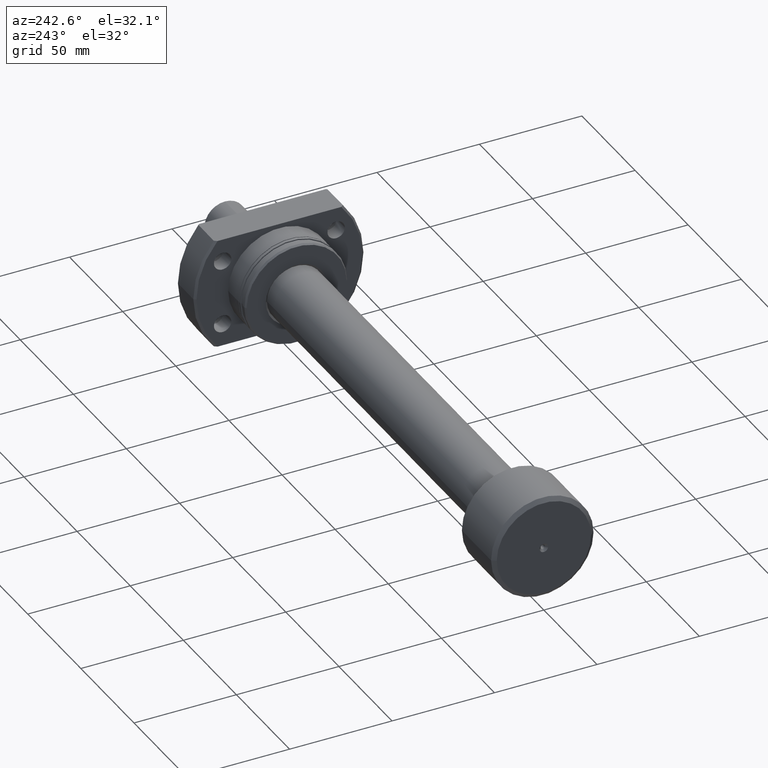
[diagram: clean part render]
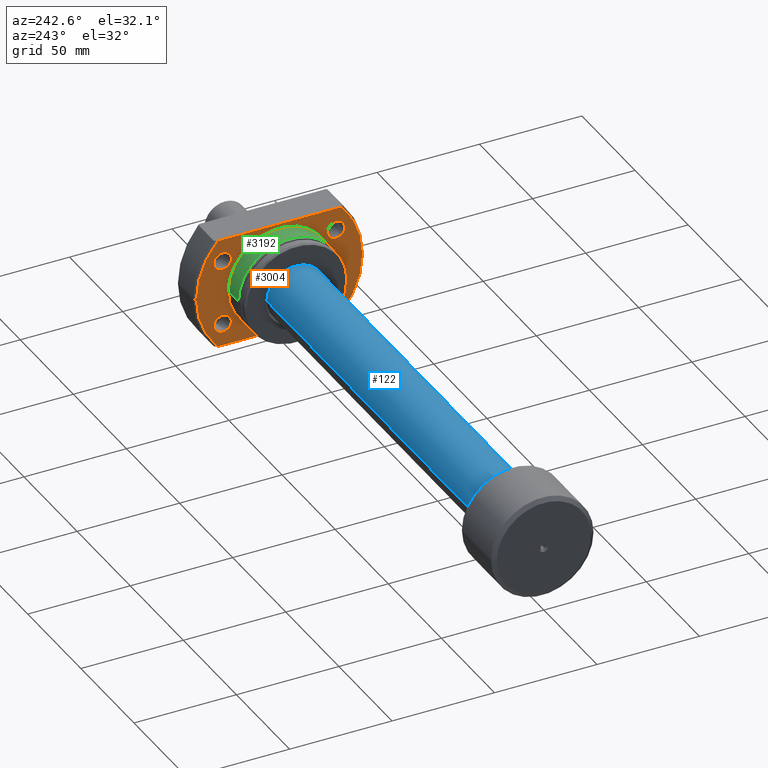
[diagram: same view with three faces highlighted in distinct colors, each labeled with its STEP entity id]
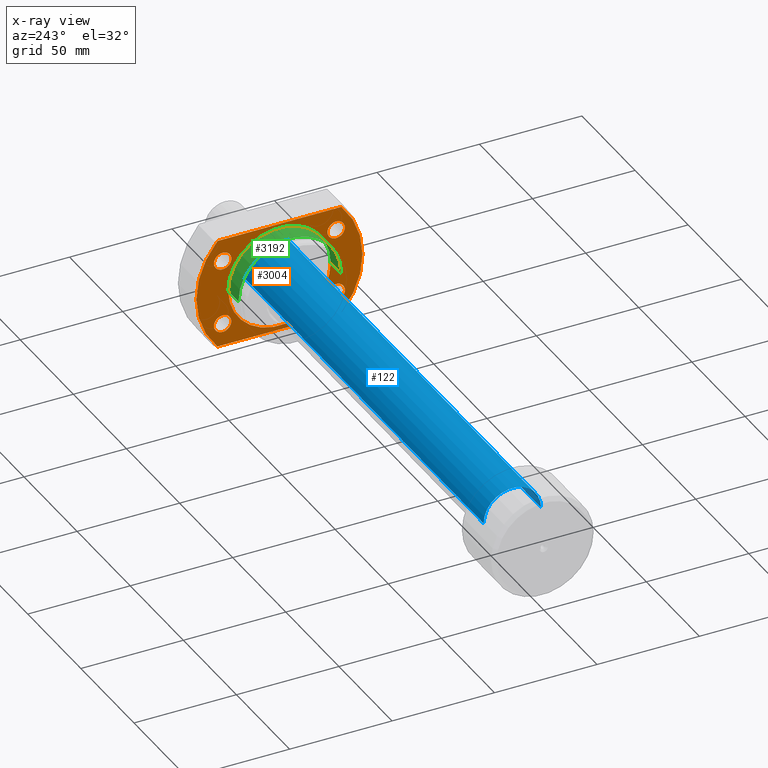
[diagram: x-ray of the same camera — body ghosted, the three highlighted faces saturated]
A machine part, auxiliary view with three faces highlighted in distinct colors.
The next image is the same camera in x-ray (body ghosted, the three faces saturated) — at least one of them is partly hidden behind the body in this view.
Their STEP definitions:

[orange] entity #3004 — the highlighted planar face has unit normal (1, 0, 0).
#34 = CARTESIAN_POINT ( 'NONE',  ( 16.19999999999999929, -24.99999999999999645, 3.061616997868382648E-15 ) ) ;
#35 = CIRCLE ( 'NONE', #3076, 4.250000000000000000 ) ;
#46 = DIRECTION ( 'NONE',  ( 0.000000000000000000, 1.000000000000000000, 0.000000000000000000 ) ) ;
#60 = ORIENTED_EDGE ( 'NONE', *, *, #412, .T. ) ;
#66 = DIRECTION ( 'NONE',  ( 1.000000000000000000, 2.928503215352364811E-17, -0.000000000000000000 ) ) ;
#72 = DIRECTION ( 'NONE',  ( 1.000000000000000000, 2.928503215352364811E-17, -0.000000000000000000 ) ) ;
#75 = LINE ( 'NONE', #2364, #2432 ) ;
#129 = ORIENTED_EDGE ( 'NONE', *, *, #2680, .T. ) ;
#132 = DIRECTION ( 'NONE',  ( 0.000000000000000000, 1.000000000000000000, 0.000000000000000000 ) ) ;
#157 = FACE_BOUND ( 'NONE', #3655, .T. ) ;
#182 = CARTESIAN_POINT ( 'NONE',  ( 16.20000000000000639, -30.18691769624705046, -27.00000000000001066 ) ) ;
#217 = DIRECTION ( 'NONE',  ( 0.000000000000000000, 1.000000000000000000, 0.000000000000000000 ) ) ;
#264 = LINE ( 'NONE', #3129, #3563 ) ;
#328 = AXIS2_PLACEMENT_3D ( 'NONE', #604, #2351, #2621 ) ;
#339 = EDGE_CURVE ( 'NONE', #1833, #640, #1503, .T. ) ;
#344 = ORIENTED_EDGE ( 'NONE', *, *, #2411, .T. ) ;
#363 = ORIENTED_EDGE ( 'NONE', *, *, #1037, .F. ) ;
#377 = DIRECTION ( 'NONE',  ( 0.000000000000000000, 1.000000000000000000, 0.000000000000000000 ) ) ;
#387 = VERTEX_POINT ( 'NONE', #3059 ) ;
#412 = EDGE_CURVE ( 'NONE', #543, #655, #3101, .T. ) ;
#436 = EDGE_CURVE ( 'NONE', #2628, #496, #898, .T. ) ;
#439 = CARTESIAN_POINT ( 'NONE',  ( 16.19999999999999929, 31.94999999999953388, 16.00000000000000000 ) ) ;
#460 = AXIS2_PLACEMENT_3D ( 'NONE', #1051, #2727, #132 ) ;
#496 = VERTEX_POINT ( 'NONE', #1113 ) ;
#543 = VERTEX_POINT ( 'NONE', #34 ) ;
#601 = AXIS2_PLACEMENT_3D ( 'NONE', #2187, #3032, #3623 ) ;
#604 = CARTESIAN_POINT ( 'NONE',  ( 16.19999999999999929, 4.744175208870830402E-16, 0.000000000000000000 ) ) ;
#640 = VERTEX_POINT ( 'NONE', #3458 ) ;
#655 = VERTEX_POINT ( 'NONE', #1088 ) ;
#666 = DIRECTION ( 'NONE',  ( 1.000000000000000000, 2.928503215352364811E-17, -0.000000000000000000 ) ) ;
#700 = FACE_BOUND ( 'NONE', #2280, .T. ) ;
#796 = EDGE_CURVE ( 'NONE', #1833, #2094, #75, .T. ) ;
#898 = CIRCLE ( 'NONE', #601, 4.250000000000000000 ) ;
#908 = DIRECTION ( 'NONE',  ( 1.000000000000000000, 2.928503215352364811E-17, -0.000000000000000000 ) ) ;
#922 = DIRECTION ( 'NONE',  ( 1.000000000000000000, 2.928503215352364811E-17, -0.000000000000000000 ) ) ;
#926 = VERTEX_POINT ( 'NONE', #1337 ) ;
#929 = DIRECTION ( 'NONE',  ( 2.928503215352364811E-17, -1.000000000000000000, 0.000000000000000000 ) ) ;
#966 = DIRECTION ( 'NONE',  ( 0.000000000000000000, 1.000000000000000000, 0.000000000000000000 ) ) ;
#975 = CARTESIAN_POINT ( 'NONE',  ( 16.19999999999999929, 31.94999999999953388, -16.00000000000000000 ) ) ;
#1022 = ORIENTED_EDGE ( 'NONE', *, *, #2782, .T. ) ;
#1037 = EDGE_CURVE ( 'NONE', #1424, #2991, #264, .T. ) ;
#1051 = CARTESIAN_POINT ( 'NONE',  ( 16.19999999999999929, 27.69999999999953388, -16.00000000000000000 ) ) ;
#1063 = DIRECTION ( 'NONE',  ( 0.000000000000000000, 1.000000000000000000, 0.000000000000000000 ) ) ;
#1082 = ORIENTED_EDGE ( 'NONE', *, *, #3125, .F. ) ;
#1088 = CARTESIAN_POINT ( 'NONE',  ( 16.19999999999999929, 24.99999999999999645, 0.000000000000000000 ) ) ;
#1108 = DIRECTION ( 'NONE',  ( 1.000000000000000000, 2.928503215352364811E-17, -0.000000000000000000 ) ) ;
#1113 = CARTESIAN_POINT ( 'NONE',  ( 16.19999999999999929, 23.44999999999953388, 16.00000000000000000 ) ) ;
#1144 = DIRECTION ( 'NONE',  ( 2.928503215352364811E-17, -1.000000000000000000, 0.000000000000000000 ) ) ;
#1155 = EDGE_LOOP ( 'NONE', ( #1022, #60 ) ) ;
#1166 = DIRECTION ( 'NONE',  ( 0.000000000000000000, 1.000000000000000000, 0.000000000000000000 ) ) ;
#1283 = EDGE_CURVE ( 'NONE', #496, #2628, #2902, .T. ) ;
#1294 = AXIS2_PLACEMENT_3D ( 'NONE', #3531, #908, #966 ) ;
#1337 = CARTESIAN_POINT ( 'NONE',  ( 16.19999999999999929, -23.45000000000046469, 16.00000000000000000 ) ) ;
#1354 = AXIS2_PLACEMENT_3D ( 'NONE', #3472, #72, #2360 ) ;
#1379 = EDGE_LOOP ( 'NONE', ( #3067, #2840 ) ) ;
#1390 = ORIENTED_EDGE ( 'NONE', *, *, #3345, .F. ) ;
#1406 = AXIS2_PLACEMENT_3D ( 'NONE', #1561, #2718, #2091 ) ;
#1407 = CIRCLE ( 'NONE', #460, 4.250000000000000000 ) ;
#1424 = VERTEX_POINT ( 'NONE', #1627 ) ;
#1479 = DIRECTION ( 'NONE',  ( 0.000000000000000000, 1.000000000000000000, 0.000000000000000000 ) ) ;
#1489 = VERTEX_POINT ( 'NONE', #2352 ) ;
#1503 = CIRCLE ( 'NONE', #3592, 40.49999999999992184 ) ;
#1504 = DIRECTION ( 'NONE',  ( 0.000000000000000000, 1.000000000000000000, 0.000000000000000000 ) ) ;
#1561 = CARTESIAN_POINT ( 'NONE',  ( 16.19999999999999929, -24.99999999999999645, 0.000000000000000000 ) ) ;
#1627 = CARTESIAN_POINT ( 'NONE',  ( 16.20000000000000284, 30.18691769624705046, 27.00000000000001066 ) ) ;
#1642 = CARTESIAN_POINT ( 'NONE',  ( 16.19999999999999929, -27.70000000000046469, 16.00000000000000000 ) ) ;
#1656 = VERTEX_POINT ( 'NONE', #975 ) ;
#1684 = ORIENTED_EDGE ( 'NONE', *, *, #796, .T. ) ;
#1744 = ORIENTED_EDGE ( 'NONE', *, *, #436, .T. ) ;
#1762 = CIRCLE ( 'NONE', #2661, 4.250000000000000000 ) ;
#1770 = AXIS2_PLACEMENT_3D ( 'NONE', #2928, #66, #46 ) ;
#1829 = CARTESIAN_POINT ( 'NONE',  ( 16.20000000000000639, -30.18691769624705046, 27.00000000000001066 ) ) ;
#1833 = VERTEX_POINT ( 'NONE', #3452 ) ;
#1848 = CARTESIAN_POINT ( 'NONE',  ( 16.20000000000000284, 4.744175208870831388E-16, 0.000000000000000000 ) ) ;
#1864 = PLANE ( 'NONE',  #1406 ) ;
#1867 = EDGE_LOOP ( 'NONE', ( #3171, #344 ) ) ;
#1911 = CARTESIAN_POINT ( 'NONE',  ( 16.19999999999999929, 4.744175208870830402E-16, 0.000000000000000000 ) ) ;
#1914 = CARTESIAN_POINT ( 'NONE',  ( 16.19999999999999929, 27.69999999999953388, -16.00000000000000000 ) ) ;
#1921 = FACE_BOUND ( 'NONE', #1867, .T. ) ;
#1928 = CIRCLE ( 'NONE', #328, 24.99999999999999645 ) ;
#1934 = AXIS2_PLACEMENT_3D ( 'NONE', #2027, #1108, #1166 ) ;
#1945 = EDGE_CURVE ( 'NONE', #2952, #1489, #2067, .T. ) ;
#1963 = EDGE_LOOP ( 'NONE', ( #363, #1390, #2002, #1684, #1082 ) ) ;
#2002 = ORIENTED_EDGE ( 'NONE', *, *, #339, .F. ) ;
#2003 = EDGE_CURVE ( 'NONE', #1656, #387, #1407, .T. ) ;
#2027 = CARTESIAN_POINT ( 'NONE',  ( 16.20000000000000284, 4.744175208870831388E-16, 0.000000000000000000 ) ) ;
#2039 = ORIENTED_EDGE ( 'NONE', *, *, #1283, .T. ) ;
#2057 = CARTESIAN_POINT ( 'NONE',  ( 16.19999999999999929, -27.70000000000046469, 16.00000000000000000 ) ) ;
#2067 = CIRCLE ( 'NONE', #3569, 4.250000000000000000 ) ;
#2091 = DIRECTION ( 'NONE',  ( -2.928503215352364811E-17, 1.000000000000000000, 0.000000000000000000 ) ) ;
#2094 = VERTEX_POINT ( 'NONE', #182 ) ;
#2152 = FACE_BOUND ( 'NONE', #1155, .T. ) ;
#2187 = CARTESIAN_POINT ( 'NONE',  ( 16.19999999999999929, 27.69999999999953388, 16.00000000000000000 ) ) ;
#2222 = DIRECTION ( 'NONE',  ( 1.000000000000000000, 2.928503215352364811E-17, -0.000000000000000000 ) ) ;
#2280 = EDGE_LOOP ( 'NONE', ( #2477, #129 ) ) ;
#2343 = AXIS2_PLACEMENT_3D ( 'NONE', #1911, #3325, #217 ) ;
#2344 = EDGE_CURVE ( 'NONE', #926, #3482, #2374, .T. ) ;
#2351 = DIRECTION ( 'NONE',  ( 1.000000000000000000, 2.928503215352364811E-17, -0.000000000000000000 ) ) ;
#2352 = CARTESIAN_POINT ( 'NONE',  ( 16.19999999999999929, -31.95000000000046469, -16.00000000000000000 ) ) ;
#2360 = DIRECTION ( 'NONE',  ( 0.000000000000000000, 1.000000000000000000, 0.000000000000000000 ) ) ;
#2364 = CARTESIAN_POINT ( 'NONE',  ( 16.19999999999999929, -24.99999999999999645, -27.00000000000001066 ) ) ;
#2374 = CIRCLE ( 'NONE', #3316, 4.250000000000000000 ) ;
#2391 = CARTESIAN_POINT ( 'NONE',  ( 16.19999999999999929, -23.45000000000046469, -16.00000000000000000 ) ) ;
#2411 = EDGE_CURVE ( 'NONE', #1489, #2952, #3378, .T. ) ;
#2432 = VECTOR ( 'NONE', #929, 1000.000000000000000 ) ;
#2462 = FACE_OUTER_BOUND ( 'NONE', #1963, .T. ) ;
#2477 = ORIENTED_EDGE ( 'NONE', *, *, #2344, .T. ) ;
#2614 = CARTESIAN_POINT ( 'NONE',  ( 16.19999999999999929, -27.70000000000046469, -16.00000000000000000 ) ) ;
#2621 = DIRECTION ( 'NONE',  ( 0.000000000000000000, 1.000000000000000000, 0.000000000000000000 ) ) ;
#2628 = VERTEX_POINT ( 'NONE', #439 ) ;
#2661 = AXIS2_PLACEMENT_3D ( 'NONE', #1914, #2222, #3678 ) ;
#2680 = EDGE_CURVE ( 'NONE', #3482, #926, #35, .T. ) ;
#2696 = EDGE_CURVE ( 'NONE', #387, #1656, #1762, .T. ) ;
#2718 = DIRECTION ( 'NONE',  ( 1.000000000000000000, 2.928503215352364811E-17, -0.000000000000000000 ) ) ;
#2727 = DIRECTION ( 'NONE',  ( 1.000000000000000000, 2.928503215352364811E-17, -0.000000000000000000 ) ) ;
#2761 = CARTESIAN_POINT ( 'NONE',  ( 16.19999999999999929, -31.95000000000046469, 16.00000000000000000 ) ) ;
#2782 = EDGE_CURVE ( 'NONE', #655, #543, #1928, .T. ) ;
#2840 = ORIENTED_EDGE ( 'NONE', *, *, #2696, .T. ) ;
#2902 = CIRCLE ( 'NONE', #1294, 4.250000000000000000 ) ;
#2928 = CARTESIAN_POINT ( 'NONE',  ( 16.19999999999999929, -27.70000000000046469, -16.00000000000000000 ) ) ;
#2952 = VERTEX_POINT ( 'NONE', #2391 ) ;
#2975 = CIRCLE ( 'NONE', #1354, 40.49999999999992184 ) ;
#2991 = VERTEX_POINT ( 'NONE', #1829 ) ;
#3001 = DIRECTION ( 'NONE',  ( 1.000000000000000000, 2.928503215352364811E-17, -0.000000000000000000 ) ) ;
#3004 = ADVANCED_FACE ( 'NONE', ( #157, #700, #1921, #3074, #2152, #2462 ), #1864, .F. ) ;
#3032 = DIRECTION ( 'NONE',  ( 1.000000000000000000, 2.928503215352364811E-17, -0.000000000000000000 ) ) ;
#3059 = CARTESIAN_POINT ( 'NONE',  ( 16.19999999999999929, 23.44999999999953388, -16.00000000000000000 ) ) ;
#3067 = ORIENTED_EDGE ( 'NONE', *, *, #2003, .T. ) ;
#3074 = FACE_BOUND ( 'NONE', #1379, .T. ) ;
#3076 = AXIS2_PLACEMENT_3D ( 'NONE', #1642, #3382, #1063 ) ;
#3101 = CIRCLE ( 'NONE', #2343, 24.99999999999999645 ) ;
#3125 = EDGE_CURVE ( 'NONE', #2991, #2094, #3565, .T. ) ;
#3129 = CARTESIAN_POINT ( 'NONE',  ( 16.19999999999999929, -24.99999999999999645, 27.00000000000001066 ) ) ;
#3171 = ORIENTED_EDGE ( 'NONE', *, *, #1945, .T. ) ;
#3316 = AXIS2_PLACEMENT_3D ( 'NONE', #2057, #666, #1504 ) ;
#3325 = DIRECTION ( 'NONE',  ( 1.000000000000000000, 2.928503215352364811E-17, -0.000000000000000000 ) ) ;
#3345 = EDGE_CURVE ( 'NONE', #640, #1424, #2975, .T. ) ;
#3378 = CIRCLE ( 'NONE', #1770, 4.250000000000000000 ) ;
#3382 = DIRECTION ( 'NONE',  ( 1.000000000000000000, 2.928503215352364811E-17, -0.000000000000000000 ) ) ;
#3452 = CARTESIAN_POINT ( 'NONE',  ( 16.20000000000000284, 30.18691769624705046, -27.00000000000001066 ) ) ;
#3458 = CARTESIAN_POINT ( 'NONE',  ( 16.20000000000000284, 40.49999999999992184, 0.000000000000000000 ) ) ;
#3472 = CARTESIAN_POINT ( 'NONE',  ( 16.20000000000000284, 4.744175208870831388E-16, 0.000000000000000000 ) ) ;
#3482 = VERTEX_POINT ( 'NONE', #2761 ) ;
#3531 = CARTESIAN_POINT ( 'NONE',  ( 16.19999999999999929, 27.69999999999953388, 16.00000000000000000 ) ) ;
#3563 = VECTOR ( 'NONE', #1144, 1000.000000000000000 ) ;
#3565 = CIRCLE ( 'NONE', #1934, 40.49999999999992184 ) ;
#3569 = AXIS2_PLACEMENT_3D ( 'NONE', #2614, #922, #377 ) ;
#3592 = AXIS2_PLACEMENT_3D ( 'NONE', #1848, #3001, #1479 ) ;
#3623 = DIRECTION ( 'NONE',  ( 0.000000000000000000, 1.000000000000000000, 0.000000000000000000 ) ) ;
#3655 = EDGE_LOOP ( 'NONE', ( #1744, #2039 ) ) ;
#3678 = DIRECTION ( 'NONE',  ( 0.000000000000000000, 1.000000000000000000, 0.000000000000000000 ) ) ;

[blue] entity #122 — the highlighted cylindrical surface (edge-blend (fillet) strip) has radius 14 mm, axis along (-1, -0, -0).
#122 = ADVANCED_FACE ( 'NONE', ( #2882 ), #1133, .T. ) ;
#173 = DIRECTION ( 'NONE',  ( 0.000000000000000000, -1.000000000000000000, 0.000000000000000000 ) ) ;
#251 = DIRECTION ( 'NONE',  ( 1.069542322069065801E-17, -1.000000000000000000, 0.000000000000000000 ) ) ;
#271 = VERTEX_POINT ( 'NONE', #3197 ) ;
#415 = EDGE_CURVE ( 'NONE', #3478, #271, #1862, .T. ) ;
#681 = DIRECTION ( 'NONE',  ( -1.000000000000000000, -1.069542322069065801E-17, -0.000000000000000000 ) ) ;
#752 = LINE ( 'NONE', #1576, #3373 ) ;
#773 = CARTESIAN_POINT ( 'NONE',  ( -1.497359250896702752E-16, 14.00000000000009948, 1.714505518806306668E-15 ) ) ;
#804 = ORIENTED_EDGE ( 'NONE', *, *, #1752, .T. ) ;
#887 = ORIENTED_EDGE ( 'NONE', *, *, #415, .T. ) ;
#906 = AXIS2_PLACEMENT_3D ( 'NONE', #2329, #1720, #251 ) ;
#932 = CIRCLE ( 'NONE', #1232, 14.00000000000019895 ) ;
#964 = EDGE_CURVE ( 'NONE', #1224, #271, #2483, .T. ) ;
#1029 = DIRECTION ( 'NONE',  ( -1.000000000000000000, -1.069542322069065801E-17, -0.000000000000000000 ) ) ;
#1133 = CYLINDRICAL_SURFACE ( 'NONE', #906, 14.00000000000009948 ) ;
#1224 = VERTEX_POINT ( 'NONE', #1746 ) ;
#1232 = AXIS2_PLACEMENT_3D ( 'NONE', #1517, #681, #2154 ) ;
#1517 = CARTESIAN_POINT ( 'NONE',  ( 266.0667575123237611, 2.845696576551178119E-15, 0.000000000000000000 ) ) ;
#1540 = CARTESIAN_POINT ( 'NONE',  ( 266.0667575123237611, -14.00000000000019718, 0.000000000000000000 ) ) ;
#1576 = CARTESIAN_POINT ( 'NONE',  ( 1.497359250896702752E-16, -14.00000000000009948, 0.000000000000000000 ) ) ;
#1588 = CARTESIAN_POINT ( 'NONE',  ( 29.70000000000000995, 3.176540696545126980E-16, 0.000000000000000000 ) ) ;
#1720 = DIRECTION ( 'NONE',  ( -1.000000000000000000, -1.069542322069065801E-17, -0.000000000000000000 ) ) ;
#1746 = CARTESIAN_POINT ( 'NONE',  ( 29.70000000000000995, -13.99999999999999822, 0.000000000000000000 ) ) ;
#1752 = EDGE_CURVE ( 'NONE', #2973, #3478, #932, .T. ) ;
#1862 = LINE ( 'NONE', #773, #3587 ) ;
#2142 = CARTESIAN_POINT ( 'NONE',  ( 266.0667575123237611, 14.00000000000020250, 1.714505518806319290E-15 ) ) ;
#2154 = DIRECTION ( 'NONE',  ( 0.000000000000000000, -1.000000000000000000, 0.000000000000000000 ) ) ;
#2170 = DIRECTION ( 'NONE',  ( -1.000000000000000000, -1.069542322069065801E-17, -0.000000000000000000 ) ) ;
#2311 = ORIENTED_EDGE ( 'NONE', *, *, #2984, .F. ) ;
#2329 = CARTESIAN_POINT ( 'NONE',  ( 0.000000000000000000, 0.000000000000000000, 0.000000000000000000 ) ) ;
#2483 = CIRCLE ( 'NONE', #3253, 13.99999999999999822 ) ;
#2733 = DIRECTION ( 'NONE',  ( -1.000000000000000000, -1.069542322069065801E-17, -0.000000000000000000 ) ) ;
#2882 = FACE_OUTER_BOUND ( 'NONE', #3514, .T. ) ;
#2973 = VERTEX_POINT ( 'NONE', #1540 ) ;
#2984 = EDGE_CURVE ( 'NONE', #2973, #1224, #752, .T. ) ;
#2987 = ORIENTED_EDGE ( 'NONE', *, *, #964, .F. ) ;
#3197 = CARTESIAN_POINT ( 'NONE',  ( 29.70000000000000995, 13.99999999999999822, 1.714505518806300554E-15 ) ) ;
#3253 = AXIS2_PLACEMENT_3D ( 'NONE', #1588, #2733, #173 ) ;
#3373 = VECTOR ( 'NONE', #1029, 1000.000000000000000 ) ;
#3478 = VERTEX_POINT ( 'NONE', #2142 ) ;
#3514 = EDGE_LOOP ( 'NONE', ( #804, #887, #2987, #2311 ) ) ;
#3587 = VECTOR ( 'NONE', #2170, 1000.000000000000000 ) ;

[green] entity #3192 — the highlighted cylindrical surface (partial cylindrical patch) has radius 25 mm, axis along (1, 0, 0).
#34 = CARTESIAN_POINT ( 'NONE',  ( 16.19999999999999929, -24.99999999999999645, 3.061616997868382648E-15 ) ) ;
#152 = VERTEX_POINT ( 'NONE', #1673 ) ;
#311 = EDGE_CURVE ( 'NONE', #152, #3682, #2159, .T. ) ;
#328 = AXIS2_PLACEMENT_3D ( 'NONE', #604, #2351, #2621 ) ;
#464 = VECTOR ( 'NONE', #2814, 1000.000000000000000 ) ;
#543 = VERTEX_POINT ( 'NONE', #34 ) ;
#604 = CARTESIAN_POINT ( 'NONE',  ( 16.19999999999999929, 4.744175208870830402E-16, 0.000000000000000000 ) ) ;
#655 = VERTEX_POINT ( 'NONE', #1088 ) ;
#665 = ORIENTED_EDGE ( 'NONE', *, *, #3551, .F. ) ;
#726 = ORIENTED_EDGE ( 'NONE', *, *, #311, .T. ) ;
#784 = DIRECTION ( 'NONE',  ( 1.000000000000000000, 2.928503215352364811E-17, -0.000000000000000000 ) ) ;
#817 = FACE_OUTER_BOUND ( 'NONE', #911, .T. ) ;
#911 = EDGE_LOOP ( 'NONE', ( #726, #3379, #1726, #665 ) ) ;
#928 = EDGE_CURVE ( 'NONE', #3682, #543, #1057, .T. ) ;
#991 = DIRECTION ( 'NONE',  ( -3.469446951953614805E-17, 1.000000000000000000, 0.000000000000000000 ) ) ;
#1057 = LINE ( 'NONE', #2203, #2899 ) ;
#1088 = CARTESIAN_POINT ( 'NONE',  ( 16.19999999999999929, 24.99999999999999645, 0.000000000000000000 ) ) ;
#1192 = CARTESIAN_POINT ( 'NONE',  ( 6.499999999999783284, 1.903527089978972293E-16, 0.000000000000000000 ) ) ;
#1411 = DIRECTION ( 'NONE',  ( 1.000000000000000000, 2.928503215352364811E-17, -0.000000000000000000 ) ) ;
#1458 = CARTESIAN_POINT ( 'NONE',  ( 6.499999999999784173, -24.99999999999999645, 3.061616997868382648E-15 ) ) ;
#1673 = CARTESIAN_POINT ( 'NONE',  ( 6.499999999999783284, 24.99999999999999645, 0.000000000000000000 ) ) ;
#1726 = ORIENTED_EDGE ( 'NONE', *, *, #2782, .F. ) ;
#1774 = DIRECTION ( 'NONE',  ( 1.000000000000000000, 2.928503215352364811E-17, -0.000000000000000000 ) ) ;
#1928 = CIRCLE ( 'NONE', #328, 24.99999999999999645 ) ;
#1959 = CARTESIAN_POINT ( 'NONE',  ( 32.20000000000000284, 9.429780353434613113E-16, 0.000000000000000000 ) ) ;
#2159 = CIRCLE ( 'NONE', #3232, 24.99999999999999645 ) ;
#2203 = CARTESIAN_POINT ( 'NONE',  ( 32.20000000000000284, -24.99999999999999645, 3.061616997868382648E-15 ) ) ;
#2292 = LINE ( 'NONE', #3388, #464 ) ;
#2351 = DIRECTION ( 'NONE',  ( 1.000000000000000000, 2.928503215352364811E-17, -0.000000000000000000 ) ) ;
#2496 = AXIS2_PLACEMENT_3D ( 'NONE', #1959, #1411, #3428 ) ;
#2621 = DIRECTION ( 'NONE',  ( 0.000000000000000000, 1.000000000000000000, 0.000000000000000000 ) ) ;
#2782 = EDGE_CURVE ( 'NONE', #655, #543, #1928, .T. ) ;
#2814 = DIRECTION ( 'NONE',  ( 1.000000000000000000, 2.928503215352364811E-17, -0.000000000000000000 ) ) ;
#2899 = VECTOR ( 'NONE', #784, 1000.000000000000000 ) ;
#3092 = CYLINDRICAL_SURFACE ( 'NONE', #2496, 24.99999999999999645 ) ;
#3192 = ADVANCED_FACE ( 'NONE', ( #817 ), #3092, .T. ) ;
#3232 = AXIS2_PLACEMENT_3D ( 'NONE', #1192, #1774, #991 ) ;
#3379 = ORIENTED_EDGE ( 'NONE', *, *, #928, .T. ) ;
#3388 = CARTESIAN_POINT ( 'NONE',  ( 32.20000000000000284, 24.99999999999999645, 0.000000000000000000 ) ) ;
#3428 = DIRECTION ( 'NONE',  ( 0.000000000000000000, 1.000000000000000000, 0.000000000000000000 ) ) ;
#3551 = EDGE_CURVE ( 'NONE', #152, #655, #2292, .T. ) ;
#3682 = VERTEX_POINT ( 'NONE', #1458 ) ;